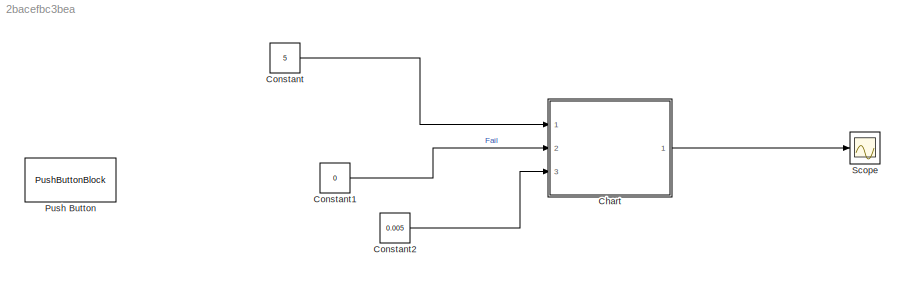
MODEL slx_2bacefbc3bea
KIND model
CONFIG AbsTol = auto
CONFIG EnableMultiTasking = off
CONFIG FixedStep = auto
CONFIG MaxStep = auto
CONFIG MinStep = auto
CONFIG RelTol = 1e-3
CONFIG SampleTimeConstraint = Unconstrained
CONFIG Solver = VariableStepAuto
CONFIG SolverName = VariableStepAuto
CONFIG StartTime = 0.0
CONFIG StopTime = 100000
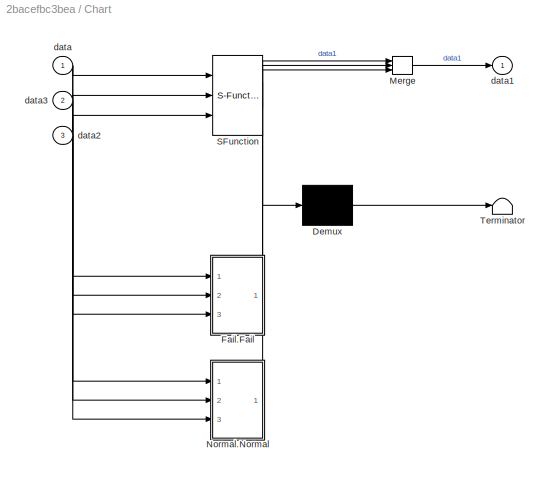
BLOCK [SubSystem] Chart
  ErrorFcn = Stateflow.Translate.translate
  PermitHierarchicalResolution = ExplicitOnly
  Ports = [3, 1]
  RequestExecContextInheritance = off
  SFBlockType = Chart
  TreatAsAtomicUnit = on
BLOCK [Demux] Chart/ Demux 
  Outputs = 1
  Ports = [1, 1]
BLOCK [Merge] Chart/ Merge 
  Inputs = 3
  Ports = [3, 1]
BLOCK [S-Function] Chart/ SFunction 
  EnableBusSupport = on
  FunctionName = sf_sfun
  PortCounts = [3 2]
  Ports = [3, 2]
  SFcnIsStateOwnerBlock = off
  SFunctionDeploymentMode = off
  Tag = Stateflow S-Function 3
BLOCK [Terminator] Chart/ Terminator 
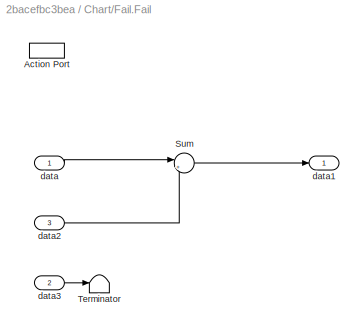
BLOCK [SubSystem] Chart/Fail.Fail
  Ports = [3, 1, 0, 0, 0, 0, 0, 1]
  PreDeleteFcn = Stateflow.SLINSF.SimulinkMan.removePreDeleteFcn
  RequestExecContextInheritance = off
  UndoDeleteFcn = Stateflow.SLINSF.SimulinkMan.restorePreDeleteFcn
BLOCK [ActionPort] Chart/Fail.Fail/Action Port
  CopyFcn = Stateflow.SLINSF.SimulinkMan.removeBlockPreDeleteFcn
  PreDeleteFcn = Stateflow.SLINSF.SimulinkMan.unsafePredeleteFcn
BLOCK [Sum] Chart/Fail.Fail/Sum
  Inputs = |+-
  Ports = [2, 1]
BLOCK [Terminator] Chart/Fail.Fail/Terminator
BLOCK [Inport] Chart/Fail.Fail/data
BLOCK [Outport] Chart/Fail.Fail/data1
BLOCK [Inport] Chart/Fail.Fail/data2
  Port = 3
BLOCK [Inport] Chart/Fail.Fail/data3
  Port = 2
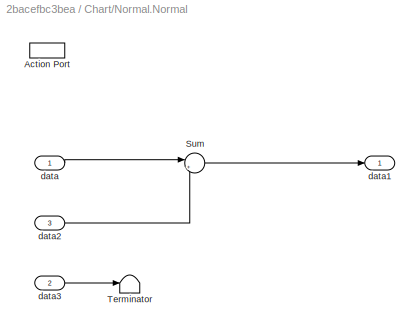
BLOCK [SubSystem] Chart/Normal.Normal
  Ports = [3, 1, 0, 0, 0, 0, 0, 1]
  PreDeleteFcn = Stateflow.SLINSF.SimulinkMan.removePreDeleteFcn
  RequestExecContextInheritance = off
  UndoDeleteFcn = Stateflow.SLINSF.SimulinkMan.restorePreDeleteFcn
BLOCK [ActionPort] Chart/Normal.Normal/Action Port
  CopyFcn = Stateflow.SLINSF.SimulinkMan.removeBlockPreDeleteFcn
  PreDeleteFcn = Stateflow.SLINSF.SimulinkMan.unsafePredeleteFcn
BLOCK [Sum] Chart/Normal.Normal/Sum
  Inputs = |++
  Ports = [2, 1]
BLOCK [Terminator] Chart/Normal.Normal/Terminator
BLOCK [Inport] Chart/Normal.Normal/data
BLOCK [Outport] Chart/Normal.Normal/data1
BLOCK [Inport] Chart/Normal.Normal/data2
  Port = 3
BLOCK [Inport] Chart/Normal.Normal/data3
  Port = 2
BLOCK [Inport] Chart/data
BLOCK [Outport] Chart/data1
BLOCK [Inport] Chart/data2
  Port = 3
BLOCK [Inport] Chart/data3
  Port = 2
BLOCK [Constant] Constant
  Value = 5
BLOCK [Constant] Constant1
  Value = 0
BLOCK [Constant] Constant2
  Value = 0.005
BLOCK [PushButtonBlock] Push Button
BLOCK [Scope] Scope
  Floating = off
  NumInputPorts = 1
  Ports = [1]
  ScopeSpecificationString = Simulink.scopes.TimeScopeBlockCfg('CurrentConfiguration', extmgr.ConfigurationSet(extmgr.Configuration('Core','General UI',true),extmgr.Configuration('Core','Source UI',true),extmgr.Configuration('Sources','WiredSimulink',true),extmgr.Configuration('Visuals','Time Domain',true,'SerializedDisplays',{struct('MinYLimReal','4.99375','MaxYLimReal','5.00625','YLabelReal','','MinYLimMag','4.99375','MaxYL...<+1385ch>
LINE Chart:1 -> Scope:1
LINE Constant1:1 -> Chart:2
LINE Constant2:1 -> Chart:3
LINE Constant:1 -> Chart:1
CHART Chart states=4 transitions=5
  STATE_LABEL 'Fail\n'
  STATE_LABEL 'Fail'
  STATE_LABEL 'Fail'
  STATE_LABEL 'Normal'
  STATE_LABEL 'Normal'
  STATE_LABEL 'Normal'
CHART  states=0 transitions=0
